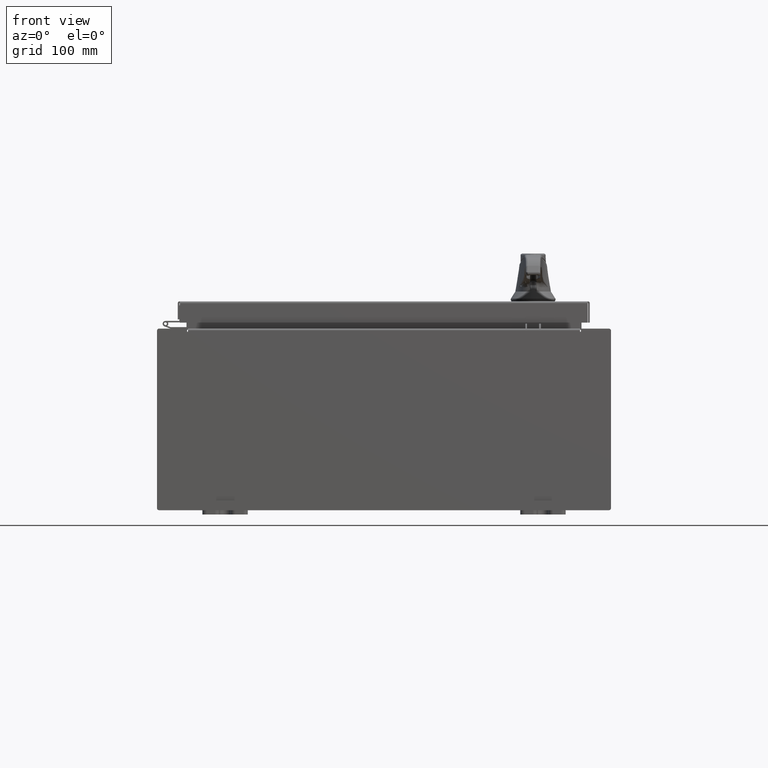
[diagram: clean part render]
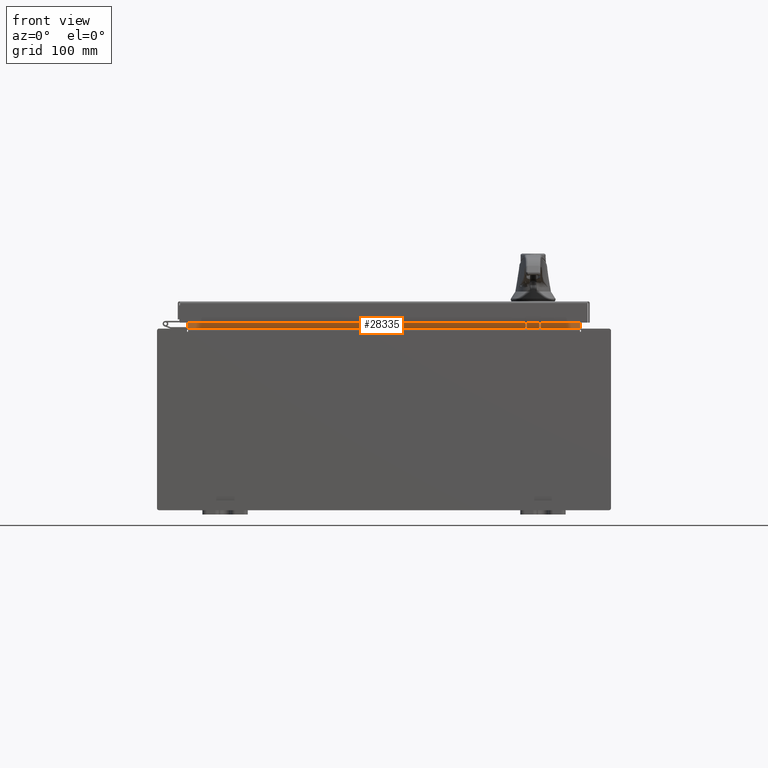
[diagram: same view with one face highlighted and labeled with its STEP entity id]
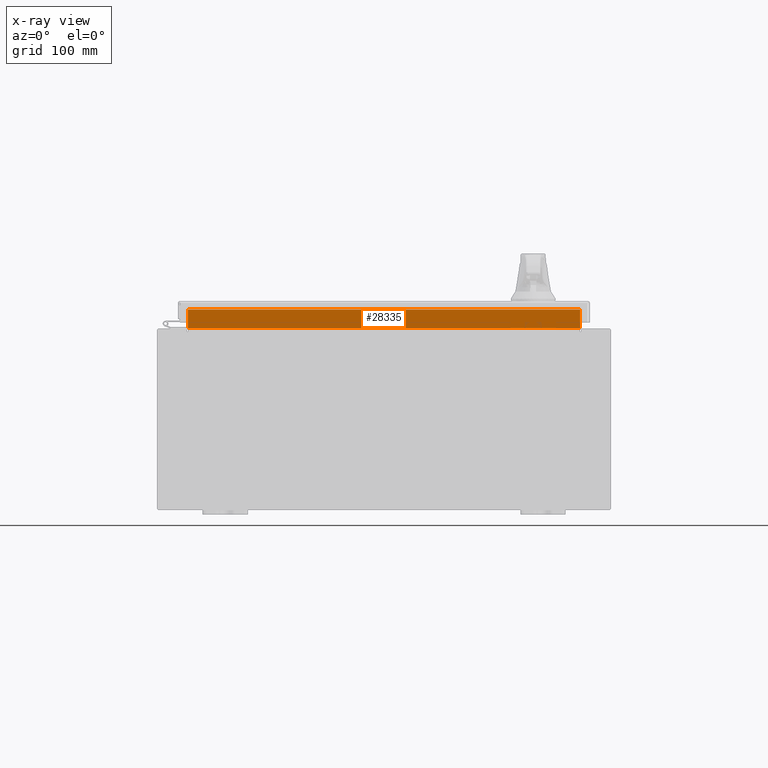
[diagram: x-ray of the same camera — body ghosted, the highlighted face saturated]
A machine part, front view. The second image highlights one B-rep face of the part: STEP entity #28335.
The next image is the same camera in x-ray: the body ghosted, the highlighted face saturated — about 0% of this face is hidden behind the body in this view.
In plain terms, the highlighted planar face has unit normal (0, -1, 0).
Its self-contained STEP definition (entity closure, byte-faithful):
#7341 = DIRECTION ( 'NONE',  ( 1.000000000000000000, 0.0000000000000000000, -3.162886113166609200E-017 ) ) ;
#13706 = LINE ( 'NONE', #28475, #100858 ) ;
#16375 = VECTOR ( 'NONE', #66801, 39.37007874015748100 ) ;
#17129 = LINE ( 'NONE', #57831, #81776 ) ;
#23326 = PLANE ( 'NONE',  #57435 ) ;
#23958 = VERTEX_POINT ( 'NONE', #107431 ) ;
#27219 = ORIENTED_EDGE ( 'NONE', *, *, #29212, .F. ) ;
#28335 = ADVANCED_FACE ( 'NONE', ( #34721 ), #23326, .T. ) ;
#28475 = CARTESIAN_POINT ( 'NONE',  ( 8.637200000000000000, -1.300299999999999800, 4.925300000000004500 ) ) ;
#29212 = EDGE_CURVE ( 'NONE', #66682, #23958, #17129, .T. ) ;
#31833 = DIRECTION ( 'NONE',  ( 0.0000000000000000000, 1.000000000000000000, 0.0000000000000000000 ) ) ;
#34721 = FACE_OUTER_BOUND ( 'NONE', #89881, .T. ) ;
#38854 = LINE ( 'NONE', #58365, #16375 ) ;
#39971 = CARTESIAN_POINT ( 'NONE',  ( 0.0000000000000000000, -1.300299999999999800, 0.0000000000000000000 ) ) ;
#57435 = AXIS2_PLACEMENT_3D ( 'NONE', #39971, #31833, #90803 ) ;
#57831 = CARTESIAN_POINT ( 'NONE',  ( -8.637200000000000000, -1.300299999999999800, 4.000000000000004400 ) ) ;
#58365 = CARTESIAN_POINT ( 'NONE',  ( 8.637200000000000000, -1.300299999999999300, 4.837600000000003700 ) ) ;
#58532 = CARTESIAN_POINT ( 'NONE',  ( 8.637200000000000000, -1.300299999999999800, 4.837600000000003700 ) ) ;
#60230 = LINE ( 'NONE', #108385, #102445 ) ;
#64196 = EDGE_CURVE ( 'NONE', #23958, #73662, #60230, .T. ) ;
#66036 = ORIENTED_EDGE ( 'NONE', *, *, #64196, .F. ) ;
#66682 = VERTEX_POINT ( 'NONE', #77932 ) ;
#66801 = DIRECTION ( 'NONE',  ( -1.000000000000000000, -0.0000000000000000000, -0.0000000000000000000 ) ) ;
#71554 = VERTEX_POINT ( 'NONE', #58532 ) ;
#73662 = VERTEX_POINT ( 'NONE', #108500 ) ;
#76655 = EDGE_CURVE ( 'NONE', #71554, #66682, #38854, .T. ) ;
#77932 = CARTESIAN_POINT ( 'NONE',  ( -8.637200000000000000, -1.300299999999999300, 4.837600000000003700 ) ) ;
#81776 = VECTOR ( 'NONE', #92301, 39.37007874015748100 ) ;
#89881 = EDGE_LOOP ( 'NONE', ( #27219, #97051, #93158, #66036 ) ) ;
#90803 = DIRECTION ( 'NONE',  ( 0.0000000000000000000, -0.0000000000000000000, 1.000000000000000000 ) ) ;
#92301 = DIRECTION ( 'NONE',  ( -0.0000000000000000000, -0.0000000000000000000, -1.000000000000000000 ) ) ;
#93158 = ORIENTED_EDGE ( 'NONE', *, *, #104422, .F. ) ;
#95943 = DIRECTION ( 'NONE',  ( -0.0000000000000000000, -0.0000000000000000000, 1.000000000000000000 ) ) ;
#97051 = ORIENTED_EDGE ( 'NONE', *, *, #76655, .F. ) ;
#100858 = VECTOR ( 'NONE', #95943, 39.37007874015748100 ) ;
#102445 = VECTOR ( 'NONE', #7341, 39.37007874015748100 ) ;
#104422 = EDGE_CURVE ( 'NONE', #73662, #71554, #13706, .T. ) ;
#107431 = CARTESIAN_POINT ( 'NONE',  ( -8.637200000000000000, -1.300299999999999800, 4.013000000000003500 ) ) ;
#108385 = CARTESIAN_POINT ( 'NONE',  ( -8.637200000000000000, -1.300299999999999800, 4.013000000000003500 ) ) ;
#108500 = CARTESIAN_POINT ( 'NONE',  ( 8.637199999999996400, -1.300299999999999800, 4.013000000000003500 ) ) ;